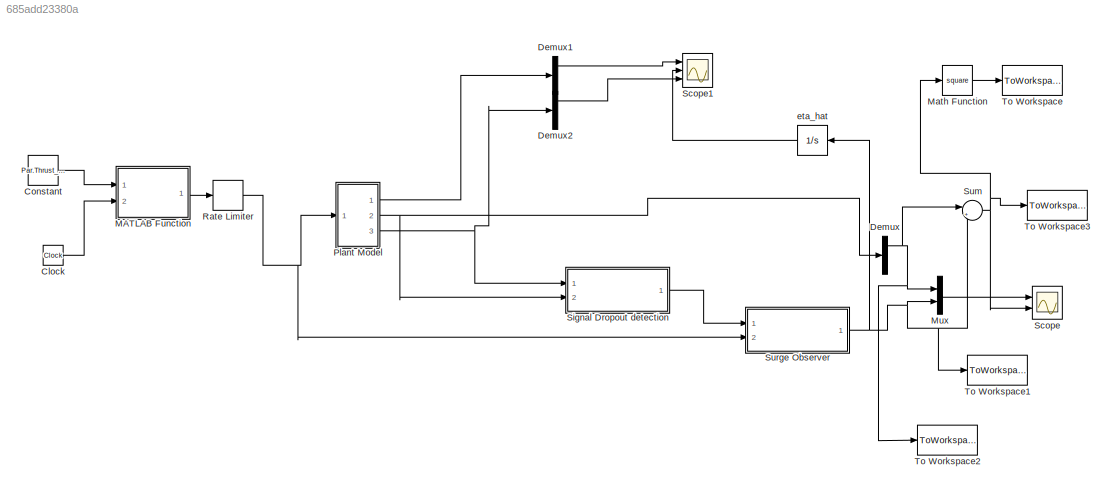
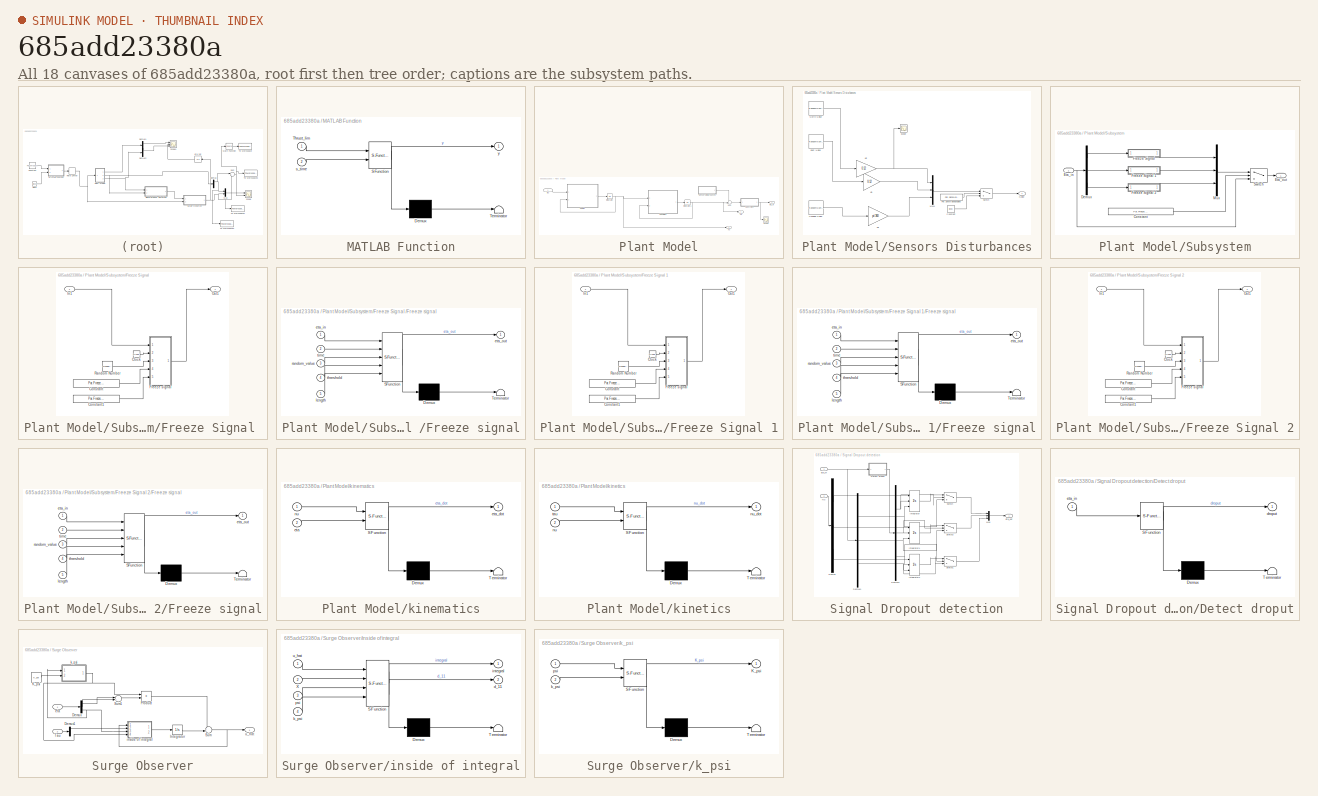
[diagram: thumbnail index - all 18 canvases of the model, root first then tree order]
MODEL slx_685add23380a
KIND model
CONFIG AbsTol = auto
CONFIG FixedStep = Par.Step_size
CONFIG MaxStep = auto
CONFIG MinStep = auto
CONFIG RelTol = 1e-3
CONFIG SampleTimeConstraint = Unconstrained
CONFIG Solver = ode45
CONFIG SolverMode = SingleTasking
CONFIG SolverName = ode45
CONFIG StartTime = 0.0
CONFIG StopTime = 30
BLOCK [Clock] Clock
BLOCK [Constant] Constant
  Value = Par.Thrust_lim
BLOCK [Demux] Demux
  DisplayOption = bar
  Outputs = 3
  Ports = [1, 3]
BLOCK [Demux] Demux1
  DisplayOption = bar
  Outputs = 3
  Ports = [1, 3]
BLOCK [Demux] Demux2
  DisplayOption = bar
  Outputs = 3
  Ports = [1, 3]
BLOCK [SubSystem] MATLAB Function
  ErrorFcn = Stateflow.Translate.translate
  PermitHierarchicalResolution = ParametersOnly
  Ports = [2, 1]
  RequestExecContextInheritance = off
  SFBlockType = MATLAB Function
  TreatAsAtomicUnit = on
  Variant = off
BLOCK [Demux] MATLAB Function/ Demux 
  Outputs = 1
  Ports = [1, 1]
BLOCK [S-Function] MATLAB Function/ SFunction 
  EnableBusSupport = on
  FunctionName = sf_sfun
  PortCounts = [2 2]
  Ports = [2, 2]
  SFunctionDeploymentMode = off
  Tag = Stateflow S-Function main_2015a 5
BLOCK [Terminator] MATLAB Function/ Terminator 
BLOCK [Inport] MATLAB Function/Thrust_lim
  IconDisplay = Port number
BLOCK [Inport] MATLAB Function/s_time
  IconDisplay = Port number
  Port = 2
BLOCK [Outport] MATLAB Function/y
  IconDisplay = Port number
BLOCK [Math] Math Function
  Operator = square
  Ports = [1, 1]
BLOCK [Mux] Mux
  DisplayOption = bar
  Inputs = 2
  Ports = [2, 1]
BLOCK [SubSystem] Plant Model
  Ports = [1, 3]
  RequestExecContextInheritance = off
  Variant = off
BLOCK [Integrator] Plant Model/Integrator
  InitialCondition = nu_0
  Ports = [1, 1]
BLOCK [Integrator] Plant Model/Integrator1
  InitialCondition = eta_0
  Ports = [1, 1]
BLOCK [Scope] Plant Model/Scope
  DataFormat = StructureWithTime
  Decimation = 1
  Grid = on
  LimitDataPoints = off
  MaxDataPoints = 5000
  NumInputPorts = 1
  Ports = [1]
  SampleInput = off
  SampleTime = -1
  SaveName = ScopeData1
  SaveToWorkspace = off
  ShowLegends = off
  TickLabels = OneTimeTick
  TimeRange = auto
  YMax = 2.49044
  YMin = -0.68357
  ZoomMode = on
BLOCK [SubSystem] Plant Model/Sensors Disturbances
  Ports = [0, 1]
  RequestExecContextInheritance = off
  Variant = off
BLOCK [Constant] Plant Model/Sensors Disturbances/Constant
  Value = [0 0 0]
BLOCK [RandomNumber] Plant Model/Sensors Disturbances/East Noise
  DisableCoverage = on
  SampleTime = Par.Sample_time
  Seed = ceil(abs(5*round(abs(now*1e6 - fix(now*1e6))*1e5)))
  VectorParams1D = off
BLOCK [RandomNumber] Plant Model/Sensors Disturbances/Heading Noise
  DisableCoverage = on
  SampleTime = Par.Sample_time
  Seed = ceil(abs(11*round(abs(now*1e6 - fix(now*1e6))*1e5)))
BLOCK [Gain] Plant Model/Sensors Disturbances/Ki1
  Gain = 0.12
  OutDataTypeStr = Inherit: Inherit via internal rule
  ParamDataTypeStr = Inherit: Inherit via internal rule
  RndMeth = Nearest
  SaturateOnIntegerOverflow = off
BLOCK [Gain] Plant Model/Sensors Disturbances/Ki2
  Gain = 0.12
  OutDataTypeStr = Inherit: Inherit via internal rule
  ParamDataTypeStr = Inherit: Inherit via internal rule
  RndMeth = Nearest
  SaturateOnIntegerOverflow = off
BLOCK [Gain] Plant Model/Sensors Disturbances/Ki4
  Gain = pi/360
  OutDataTypeStr = Inherit: Inherit via internal rule
  ParamDataTypeStr = Inherit: Inherit via internal rule
  RndMeth = Nearest
  SaturateOnIntegerOverflow = off
BLOCK [Mux] Plant Model/Sensors Disturbances/Mux1
  DisplayOption = bar
  Inputs = 3
  Ports = [3, 1]
BLOCK [Outport] Plant Model/Sensors Disturbances/Noise
  IconDisplay = Port number
BLOCK [RandomNumber] Plant Model/Sensors Disturbances/North Noise
  DisableCoverage = on
  SampleTime = Par.Sample_time
  Seed = ceil(abs(3*round(abs(now*1e6 - fix(now*1e6))*1e5)))
BLOCK [Constant] Plant Model/Sensors Disturbances/Par.SensNoiseEnabled
  Value = Par.SensNoiseEnabled
BLOCK [Scope] Plant Model/Sensors Disturbances/Scope
  DataFormat = StructureWithTime
  Decimation = 1
  Grid = on
  LimitDataPoints = off
  MaxDataPoints = 5000
  NumInputPorts = 1
  Ports = [1]
  SampleInput = off
  SampleTime = -1
  SaveName = ScopeData2
  SaveToWorkspace = off
  ShowLegends = off
  TickLabels = OneTimeTick
  TimeRange = auto
  YMax = 0.47143
  YMin = -0.51365
  ZoomMode = on
BLOCK [Switch] Plant Model/Sensors Disturbances/Switch
  Criteria = u2 > Threshold
  InputSameDT = off
  SaturateOnIntegerOverflow = off
BLOCK [SubSystem] Plant Model/Subsystem
  Ports = [1, 1]
  RequestExecContextInheritance = off
  Variant = off
BLOCK [Constant] Plant Model/Subsystem/Constant
  Value = Par.Freeze.Enable
BLOCK [Demux] Plant Model/Subsystem/Demux
  DisplayOption = bar
  Outputs = 3
  Ports = [1, 3]
BLOCK [Inport] Plant Model/Subsystem/Eta_in
  IconDisplay = Port number
BLOCK [Outport] Plant Model/Subsystem/Eta_out
  IconDisplay = Port number
BLOCK [SubSystem] Plant Model/Subsystem/Freeze Signal 
  Ports = [1, 1]
  RequestExecContextInheritance = off
  Variant = off
BLOCK [Clock] Plant Model/Subsystem/Freeze Signal /Clock
BLOCK [Constant] Plant Model/Subsystem/Freeze Signal /Constant
  Value = Par.Freeze.threshold
BLOCK [Constant] Plant Model/Subsystem/Freeze Signal /Constant1
  Value = Par.Freeze.length
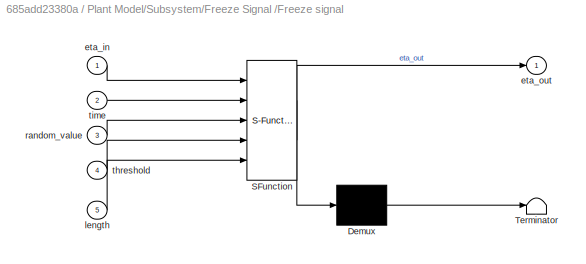
BLOCK [SubSystem] Plant Model/Subsystem/Freeze Signal /Freeze signal
  ErrorFcn = Stateflow.Translate.translate
  PermitHierarchicalResolution = ParametersOnly
  Ports = [5, 1]
  RequestExecContextInheritance = off
  SFBlockType = MATLAB Function
  TreatAsAtomicUnit = on
  Variant = off
BLOCK [Demux] Plant Model/Subsystem/Freeze Signal /Freeze signal/ Demux 
  Outputs = 1
  Ports = [1, 1]
BLOCK [S-Function] Plant Model/Subsystem/Freeze Signal /Freeze signal/ SFunction 
  EnableBusSupport = on
  FunctionName = sf_sfun
  PortCounts = [5 2]
  Ports = [5, 2]
  SFunctionDeploymentMode = off
  Tag = Stateflow S-Function main_2015a 11
BLOCK [Terminator] Plant Model/Subsystem/Freeze Signal /Freeze signal/ Terminator 
BLOCK [Inport] Plant Model/Subsystem/Freeze Signal /Freeze signal/eta_in
  IconDisplay = Port number
BLOCK [Outport] Plant Model/Subsystem/Freeze Signal /Freeze signal/eta_out
  IconDisplay = Port number
BLOCK [Inport] Plant Model/Subsystem/Freeze Signal /Freeze signal/length
  IconDisplay = Port number
  Port = 5
BLOCK [Inport] Plant Model/Subsystem/Freeze Signal /Freeze signal/random_value
  IconDisplay = Port number
  Port = 3
BLOCK [Inport] Plant Model/Subsystem/Freeze Signal /Freeze signal/threshold
  IconDisplay = Port number
  Port = 4
BLOCK [Inport] Plant Model/Subsystem/Freeze Signal /Freeze signal/time
  IconDisplay = Port number
  Port = 2
BLOCK [Inport] Plant Model/Subsystem/Freeze Signal /In1
  IconDisplay = Port number
BLOCK [Outport] Plant Model/Subsystem/Freeze Signal /Out1
  IconDisplay = Port number
BLOCK [RandomNumber] Plant Model/Subsystem/Freeze Signal /Random Number
  SampleTime = 0.1
  Seed = ceil(abs(5*round(abs(now*1e6 - fix(now*1e6))*1e5)))
BLOCK [SubSystem] Plant Model/Subsystem/Freeze Signal 1
  Ports = [1, 1]
  RequestExecContextInheritance = off
  Variant = off
BLOCK [Clock] Plant Model/Subsystem/Freeze Signal 1/Clock
BLOCK [Constant] Plant Model/Subsystem/Freeze Signal 1/Constant
  Value = Par.Freeze.threshold
BLOCK [Constant] Plant Model/Subsystem/Freeze Signal 1/Constant1
  Value = Par.Freeze.length
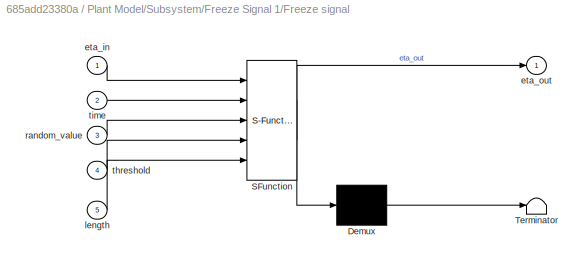
BLOCK [SubSystem] Plant Model/Subsystem/Freeze Signal 1/Freeze signal
  ErrorFcn = Stateflow.Translate.translate
  PermitHierarchicalResolution = ParametersOnly
  Ports = [5, 1]
  RequestExecContextInheritance = off
  SFBlockType = MATLAB Function
  TreatAsAtomicUnit = on
  Variant = off
BLOCK [Demux] Plant Model/Subsystem/Freeze Signal 1/Freeze signal/ Demux 
  Outputs = 1
  Ports = [1, 1]
BLOCK [S-Function] Plant Model/Subsystem/Freeze Signal 1/Freeze signal/ SFunction 
  EnableBusSupport = on
  FunctionName = sf_sfun
  PortCounts = [5 2]
  Ports = [5, 2]
  SFunctionDeploymentMode = off
  Tag = Stateflow S-Function main_2015a 12
BLOCK [Terminator] Plant Model/Subsystem/Freeze Signal 1/Freeze signal/ Terminator 
BLOCK [Inport] Plant Model/Subsystem/Freeze Signal 1/Freeze signal/eta_in
  IconDisplay = Port number
BLOCK [Outport] Plant Model/Subsystem/Freeze Signal 1/Freeze signal/eta_out
  IconDisplay = Port number
BLOCK [Inport] Plant Model/Subsystem/Freeze Signal 1/Freeze signal/length
  IconDisplay = Port number
  Port = 5
BLOCK [Inport] Plant Model/Subsystem/Freeze Signal 1/Freeze signal/random_value
  IconDisplay = Port number
  Port = 3
BLOCK [Inport] Plant Model/Subsystem/Freeze Signal 1/Freeze signal/threshold
  IconDisplay = Port number
  Port = 4
BLOCK [Inport] Plant Model/Subsystem/Freeze Signal 1/Freeze signal/time
  IconDisplay = Port number
  Port = 2
BLOCK [Inport] Plant Model/Subsystem/Freeze Signal 1/In1
  IconDisplay = Port number
BLOCK [Outport] Plant Model/Subsystem/Freeze Signal 1/Out1
  IconDisplay = Port number
BLOCK [RandomNumber] Plant Model/Subsystem/Freeze Signal 1/Random Number
  SampleTime = 0.1
  Seed = ceil(abs(5*round(abs(now*1e6 - fix(now*1e6))*1e5)))
BLOCK [SubSystem] Plant Model/Subsystem/Freeze Signal 2
  Ports = [1, 1]
  RequestExecContextInheritance = off
  Variant = off
BLOCK [Clock] Plant Model/Subsystem/Freeze Signal 2/Clock
BLOCK [Constant] Plant Model/Subsystem/Freeze Signal 2/Constant
  Value = Par.Freeze.threshold
BLOCK [Constant] Plant Model/Subsystem/Freeze Signal 2/Constant1
  Value = Par.Freeze.length
BLOCK [SubSystem] Plant Model/Subsystem/Freeze Signal 2/Freeze signal
  ErrorFcn = Stateflow.Translate.translate
  PermitHierarchicalResolution = ParametersOnly
  Ports = [5, 1]
  RequestExecContextInheritance = off
  SFBlockType = MATLAB Function
  TreatAsAtomicUnit = on
  Variant = off
BLOCK [Demux] Plant Model/Subsystem/Freeze Signal 2/Freeze signal/ Demux 
  Outputs = 1
  Ports = [1, 1]
BLOCK [S-Function] Plant Model/Subsystem/Freeze Signal 2/Freeze signal/ SFunction 
  EnableBusSupport = on
  FunctionName = sf_sfun
  PortCounts = [5 2]
  Ports = [5, 2]
  SFunctionDeploymentMode = off
  Tag = Stateflow S-Function main_2015a 13
BLOCK [Terminator] Plant Model/Subsystem/Freeze Signal 2/Freeze signal/ Terminator 
BLOCK [Inport] Plant Model/Subsystem/Freeze Signal 2/Freeze signal/eta_in
  IconDisplay = Port number
BLOCK [Outport] Plant Model/Subsystem/Freeze Signal 2/Freeze signal/eta_out
  IconDisplay = Port number
BLOCK [Inport] Plant Model/Subsystem/Freeze Signal 2/Freeze signal/length
  IconDisplay = Port number
  Port = 5
BLOCK [Inport] Plant Model/Subsystem/Freeze Signal 2/Freeze signal/random_value
  IconDisplay = Port number
  Port = 3
BLOCK [Inport] Plant Model/Subsystem/Freeze Signal 2/Freeze signal/threshold
  IconDisplay = Port number
  Port = 4
BLOCK [Inport] Plant Model/Subsystem/Freeze Signal 2/Freeze signal/time
  IconDisplay = Port number
  Port = 2
BLOCK [Inport] Plant Model/Subsystem/Freeze Signal 2/In1
  IconDisplay = Port number
BLOCK [Outport] Plant Model/Subsystem/Freeze Signal 2/Out1
  IconDisplay = Port number
BLOCK [RandomNumber] Plant Model/Subsystem/Freeze Signal 2/Random Number
  SampleTime = 0.1
  Seed = ceil(abs(5*round(abs(now*1e6 - fix(now*1e6))*1e5)))
BLOCK [Mux] Plant Model/Subsystem/Mux
  DisplayOption = bar
  Inputs = 3
  Ports = [3, 1]
BLOCK [Switch] Plant Model/Subsystem/Switch
  Criteria = u2 > Threshold
  InputSameDT = off
  SaturateOnIntegerOverflow = off
BLOCK [Sum] Plant Model/Sum
  IconShape = round
  InputSameDT = off
  Inputs = ++|
  OutDataTypeStr = Inherit: Inherit via internal rule
  Ports = [2, 1]
  SaturateOnIntegerOverflow = off
BLOCK [Outport] Plant Model/eta
  IconDisplay = Port number
BLOCK [Outport] Plant Model/eta_m
  IconDisplay = Port number
  Port = 3
BLOCK [SubSystem] Plant Model/kinematics
  ErrorFcn = Stateflow.Translate.translate
  PermitHierarchicalResolution = ParametersOnly
  Ports = [2, 1]
  RequestExecContextInheritance = off
  SFBlockType = MATLAB Function
  TreatAsAtomicUnit = on
  Variant = off
BLOCK [Demux] Plant Model/kinematics/ Demux 
  Outputs = 1
  Ports = [1, 1]
BLOCK [S-Function] Plant Model/kinematics/ SFunction 
  EnableBusSupport = on
  FunctionName = sf_sfun
  PortCounts = [2 2]
  Ports = [2, 2]
  SFunctionDeploymentMode = off
  Tag = Stateflow S-Function main_2015a 1
BLOCK [Terminator] Plant Model/kinematics/ Terminator 
BLOCK [Inport] Plant Model/kinematics/eta
  IconDisplay = Port number
  Port = 2
BLOCK [Outport] Plant Model/kinematics/eta_dot
  IconDisplay = Port number
BLOCK [Inport] Plant Model/kinematics/nu
  IconDisplay = Port number
BLOCK [SubSystem] Plant Model/kinetics
  ErrorFcn = Stateflow.Translate.translate
  PermitHierarchicalResolution = ParametersOnly
  Ports = [2, 1]
  RequestExecContextInheritance = off
  SFBlockType = MATLAB Function
  TreatAsAtomicUnit = on
  Variant = off
BLOCK [Demux] Plant Model/kinetics/ Demux 
  Outputs = 1
  Ports = [1, 1]
BLOCK [S-Function] Plant Model/kinetics/ SFunction 
  EnableBusSupport = on
  FunctionName = sf_sfun
  PortCounts = [2 2]
  Ports = [2, 2]
  SFunctionDeploymentMode = off
  Tag = Stateflow S-Function main_2015a 2
BLOCK [Terminator] Plant Model/kinetics/ Terminator 
BLOCK [Inport] Plant Model/kinetics/nu
  IconDisplay = Port number
  Port = 2
BLOCK [Outport] Plant Model/kinetics/nu_dot
  IconDisplay = Port number
BLOCK [Inport] Plant Model/kinetics/tau
  IconDisplay = Port number
BLOCK [Outport] Plant Model/nu
  IconDisplay = Port number
  Port = 2
BLOCK [Inport] Plant Model/tau
  IconDisplay = Port number
BLOCK [RateLimiter] Rate Limiter
  FallingSlewLimit = -5
  RisingSlewLimit = 5
  SampleTimeMode = inherited
BLOCK [Scope] Scope
  DataFormat = StructureWithTime
  Decimation = 1
  Grid = on
  LimitDataPoints = off
  MaxDataPoints = 5000
  NumInputPorts = 2
  Ports = [2]
  SampleInput = off
  SampleTime = -1
  SaveName = ScopeData
  SaveToWorkspace = off
  ShowLegends = on
  TickLabels = OneTimeTick
  TimeRange = auto
  YMax = 1.13216~0.79171
  YMin = -1.1002~-1.35009
  ZoomMode = on
BLOCK [Scope] Scope1
  DataFormat = StructureWithTime
  Decimation = 1
  Grid = on
  LimitDataPoints = off
  MaxDataPoints = 5000
  NumInputPorts = 3
  Ports = [3]
  SampleInput = off
  SampleTime = -1
  SaveName = ScopeData1
  SaveToWorkspace = off
  ShowLegends = on
  TickLabels = OneTimeTick
  TimeRange = auto
  YMax = 5.84652~5~5
  YMin = -0.94998~-5~-5
  ZoomMode = on
BLOCK [SubSystem] Signal Dropout detection
  Ports = [2, 1]
  RequestExecContextInheritance = off
  Variant = off
BLOCK [Demux] Signal Dropout detection/Demux
  DisplayOption = bar
  Outputs = 3
  Ports = [1, 3]
BLOCK [Demux] Signal Dropout detection/Demux1
  DisplayOption = bar
  Outputs = 3
  Ports = [1, 3]
BLOCK [Demux] Signal Dropout detection/Demux2
  DisplayOption = bar
  Outputs = 3
  Ports = [1, 3]
BLOCK [SubSystem] Signal Dropout detection/Detect droput
  ErrorFcn = Stateflow.Translate.translate
  PermitHierarchicalResolution = ParametersOnly
  Ports = [1, 1]
  RequestExecContextInheritance = off
  SFBlockType = MATLAB Function
  TreatAsAtomicUnit = on
  Variant = off
BLOCK [Demux] Signal Dropout detection/Detect droput/ Demux 
  Outputs = 1
  Ports = [1, 1]
BLOCK [S-Function] Signal Dropout detection/Detect droput/ SFunction 
  EnableBusSupport = on
  FunctionName = sf_sfun
  PortCounts = [1 2]
  Ports = [1, 2]
  SFunctionDeploymentMode = off
  Tag = Stateflow S-Function main_2015a 10
BLOCK [Terminator] Signal Dropout detection/Detect droput/ Terminator 
BLOCK [Outport] Signal Dropout detection/Detect droput/droput
  IconDisplay = Port number
BLOCK [Inport] Signal Dropout detection/Detect droput/eta_in
  IconDisplay = Port number
BLOCK [Inport] Signal Dropout detection/Eta_m
  IconDisplay = Port number
BLOCK [Outport] Signal Dropout detection/Eta_out
  IconDisplay = Port number
BLOCK [Integrator] Signal Dropout detection/Integrator
  ExternalReset = rising
  InitialConditionSource = external
  Ports = [3, 1]
BLOCK [Integrator] Signal Dropout detection/Integrator1
  ExternalReset = rising
  InitialConditionSource = external
  Ports = [3, 1]
BLOCK [Integrator] Signal Dropout detection/Integrator2
  ExternalReset = rising
  InitialConditionSource = external
  Ports = [3, 1]
BLOCK [Mux] Signal Dropout detection/Mux
  DisplayOption = bar
  Inputs = 3
  Ports = [3, 1]
BLOCK [Inport] Signal Dropout detection/Nu
  IconDisplay = Port number
  Port = 2
BLOCK [Switch] Signal Dropout detection/Switch
  Criteria = u2 > Threshold
  InputSameDT = off
  SaturateOnIntegerOverflow = off
BLOCK [Switch] Signal Dropout detection/Switch1
  Criteria = u2 > Threshold
  InputSameDT = off
  SaturateOnIntegerOverflow = off
BLOCK [Switch] Signal Dropout detection/Switch2
  Criteria = u2 > Threshold
  InputSameDT = off
  SaturateOnIntegerOverflow = off
BLOCK [Sum] Sum
  IconShape = round
  InputSameDT = off
  Inputs = |+-
  OutDataTypeStr = Inherit: Inherit via internal rule
  Ports = [2, 1]
  SaturateOnIntegerOverflow = off
BLOCK [SubSystem] Surge Observer
  Ports = [2, 1]
  RequestExecContextInheritance = off
  Variant = off
BLOCK [Demux] Surge Observer/Demux
  DisplayOption = bar
  Outputs = 3
  Ports = [1, 3]
BLOCK [Demux] Surge Observer/Demux1
  DisplayOption = bar
  Outputs = 3
  Ports = [1, 3]
BLOCK [Integrator] Surge Observer/Integrator
  Ports = [1, 1]
BLOCK [Constant] Surge Observer/K_psi
  Value = K_psi
BLOCK [Product] Surge Observer/Product
  InputSameDT = off
  OutDataTypeStr = Inherit: Inherit via internal rule
  Ports = [2, 1]
  RndMeth = Floor
  SaturateOnIntegerOverflow = off
BLOCK [Sum] Surge Observer/Sum
  IconShape = round
  InputSameDT = off
  Inputs = ++|
  OutDataTypeStr = Inherit: Inherit via internal rule
  Ports = [2, 1]
  SaturateOnIntegerOverflow = off
BLOCK [Sum] Surge Observer/Sum1
  IconShape = round
  InputSameDT = off
  Inputs = |++
  OutDataTypeStr = Inherit: Inherit via internal rule
  Ports = [2, 1]
  SaturateOnIntegerOverflow = off
BLOCK [Inport] Surge Observer/Tau
  IconDisplay = Port number
  Port = 2
BLOCK [Inport] Surge Observer/eta
  IconDisplay = Port number
BLOCK [SubSystem] Surge Observer/inside of integral
  ErrorFcn = Stateflow.Translate.translate
  PermitHierarchicalResolution = ParametersOnly
  Ports = [4, 2]
  RequestExecContextInheritance = off
  SFBlockType = MATLAB Function
  TreatAsAtomicUnit = on
  Variant = off
BLOCK [Demux] Surge Observer/inside of integral/ Demux 
  Outputs = 1
  Ports = [1, 1]
BLOCK [S-Function] Surge Observer/inside of integral/ SFunction 
  EnableBusSupport = on
  FunctionName = sf_sfun
  PortCounts = [4 3]
  Ports = [4, 3]
  SFunctionDeploymentMode = off
  Tag = Stateflow S-Function main_2015a 4
BLOCK [Terminator] Surge Observer/inside of integral/ Terminator 
BLOCK [Inport] Surge Observer/inside of integral/X
  IconDisplay = Port number
  Port = 2
BLOCK [Outport] Surge Observer/inside of integral/d_11
  IconDisplay = Port number
  Port = 2
BLOCK [Outport] Surge Observer/inside of integral/integral
  IconDisplay = Port number
BLOCK [Inport] Surge Observer/inside of integral/k_psi
  IconDisplay = Port number
  Port = 4
BLOCK [Inport] Surge Observer/inside of integral/psi
  IconDisplay = Port number
  Port = 3
BLOCK [Inport] Surge Observer/inside of integral/u_hat
  IconDisplay = Port number
BLOCK [SubSystem] Surge Observer/k_psi
  ErrorFcn = Stateflow.Translate.translate
  PermitHierarchicalResolution = ParametersOnly
  Ports = [2, 1]
  RequestExecContextInheritance = off
  SFBlockType = MATLAB Function
  TreatAsAtomicUnit = on
  Variant = off
BLOCK [Demux] Surge Observer/k_psi/ Demux 
  Outputs = 1
  Ports = [1, 1]
BLOCK [S-Function] Surge Observer/k_psi/ SFunction 
  EnableBusSupport = on
  FunctionName = sf_sfun
  PortCounts = [2 2]
  Ports = [2, 2]
  SFunctionDeploymentMode = off
  Tag = Stateflow S-Function main_2015a 6
BLOCK [Terminator] Surge Observer/k_psi/ Terminator 
BLOCK [Outport] Surge Observer/k_psi/K_psi
  IconDisplay = Port number
BLOCK [Inport] Surge Observer/k_psi/k_psi
  IconDisplay = Port number
  Port = 2
BLOCK [Inport] Surge Observer/k_psi/psi
  IconDisplay = Port number
BLOCK [Outport] Surge Observer/u_hat
  IconDisplay = Port number
BLOCK [ToWorkspace] To Workspace
  FixptAsFi = on
  MaxDataPoints = inf
  Ports = [1]
  SampleTime = -1
  Save2DSignal = 3-D array (concatenate along third dimension)
  SaveFormat = Timeseries
  VariableName = simout
BLOCK [ToWorkspace] To Workspace1
  FixptAsFi = on
  MaxDataPoints = inf
  Ports = [1]
  SampleTime = -1
  Save2DSignal = 3-D array (concatenate along third dimension)
  SaveFormat = Timeseries
  VariableName = u_hat
BLOCK [ToWorkspace] To Workspace2
  FixptAsFi = on
  MaxDataPoints = inf
  Ports = [1]
  SampleTime = -1
  Save2DSignal = 3-D array (concatenate along third dimension)
  SaveFormat = Timeseries
  VariableName = nu
BLOCK [ToWorkspace] To Workspace3
  FixptAsFi = on
  MaxDataPoints = inf
  Ports = [1]
  SampleTime = -1
  Save2DSignal = 3-D array (concatenate along third dimension)
  SaveFormat = Timeseries
  VariableName = u_tilde
BLOCK [Integrator] eta_hat
  Ports = [1, 1]
LINE Clock:1 -> MATLAB Function:2
LINE Constant:1 -> MATLAB Function:1
LINE Demux1:1 -> Scope1:1
LINE Demux2:1 -> Scope1:3
NET Demux:1 -> Mux:1, Sum:1, To Workspace2:1
LINE MATLAB Function:1 -> Rate Limiter:1
LINE Math Function:1 -> To Workspace:1
LINE Mux:1 -> Scope:1
NET Plant Model/Integrator1:1 -> Plant Model/Sum:2, Plant Model/eta:1, Plant Model/kinematics:2
NET Plant Model/Integrator:1 -> Plant Model/kinematics:1, Plant Model/kinetics:2, Plant Model/nu:1
LINE Plant Model/Sensors Disturbances/Constant:1 -> Plant Model/Sensors Disturbances/Switch:3
LINE Plant Model/Sensors Disturbances/East Noise:1 -> Plant Model/Sensors Disturbances/Ki1:1
LINE Plant Model/Sensors Disturbances/Heading Noise:1 -> Plant Model/Sensors Disturbances/Ki4:1
LINE Plant Model/Sensors Disturbances/Ki1:1 -> Plant Model/Sensors Disturbances/Mux1:2
NET Plant Model/Sensors Disturbances/Ki2:1 -> Plant Model/Sensors Disturbances/Mux1:1, Plant Model/Sensors Disturbances/Scope:1
LINE Plant Model/Sensors Disturbances/Ki4:1 -> Plant Model/Sensors Disturbances/Mux1:3
LINE Plant Model/Sensors Disturbances/Mux1:1 -> Plant Model/Sensors Disturbances/Switch:1
LINE Plant Model/Sensors Disturbances/North Noise:1 -> Plant Model/Sensors Disturbances/Ki2:1
LINE Plant Model/Sensors Disturbances/Par.SensNoiseEnabled:1 -> Plant Model/Sensors Disturbances/Switch:2
LINE Plant Model/Sensors Disturbances/Switch:1 -> Plant Model/Sensors Disturbances/Noise:1
LINE Plant Model/Sensors Disturbances:1 -> Plant Model/Sum:1
LINE Plant Model/Subsystem/Constant:1 -> Plant Model/Subsystem/Switch:2
LINE Plant Model/Subsystem/Demux:1 -> Plant Model/Subsystem/Freeze Signal :1
LINE Plant Model/Subsystem/Demux:2 -> Plant Model/Subsystem/Freeze Signal 1:1
LINE Plant Model/Subsystem/Demux:3 -> Plant Model/Subsystem/Freeze Signal 2:1
NET Plant Model/Subsystem/Eta_in:1 -> Plant Model/Subsystem/Demux:1, Plant Model/Subsystem/Switch:3
LINE Plant Model/Subsystem/Freeze Signal /Clock:1 -> Plant Model/Subsystem/Freeze Signal /Freeze signal:2
LINE Plant Model/Subsystem/Freeze Signal /Constant1:1 -> Plant Model/Subsystem/Freeze Signal /Freeze signal:5
LINE Plant Model/Subsystem/Freeze Signal /Constant:1 -> Plant Model/Subsystem/Freeze Signal /Freeze signal:4
LINE Plant Model/Subsystem/Freeze Signal /Freeze signal:1 -> Plant Model/Subsystem/Freeze Signal /Out1:1
LINE Plant Model/Subsystem/Freeze Signal /In1:1 -> Plant Model/Subsystem/Freeze Signal /Freeze signal:1
LINE Plant Model/Subsystem/Freeze Signal /Random Number:1 -> Plant Model/Subsystem/Freeze Signal /Freeze signal:3
LINE Plant Model/Subsystem/Freeze Signal 1/Clock:1 -> Plant Model/Subsystem/Freeze Signal 1/Freeze signal:2
LINE Plant Model/Subsystem/Freeze Signal 1/Constant1:1 -> Plant Model/Subsystem/Freeze Signal 1/Freeze signal:5
LINE Plant Model/Subsystem/Freeze Signal 1/Constant:1 -> Plant Model/Subsystem/Freeze Signal 1/Freeze signal:4
LINE Plant Model/Subsystem/Freeze Signal 1/Freeze signal:1 -> Plant Model/Subsystem/Freeze Signal 1/Out1:1
LINE Plant Model/Subsystem/Freeze Signal 1/In1:1 -> Plant Model/Subsystem/Freeze Signal 1/Freeze signal:1
LINE Plant Model/Subsystem/Freeze Signal 1/Random Number:1 -> Plant Model/Subsystem/Freeze Signal 1/Freeze signal:3
LINE Plant Model/Subsystem/Freeze Signal 1:1 -> Plant Model/Subsystem/Mux:2
LINE Plant Model/Subsystem/Freeze Signal 2/Clock:1 -> Plant Model/Subsystem/Freeze Signal 2/Freeze signal:2
LINE Plant Model/Subsystem/Freeze Signal 2/Constant1:1 -> Plant Model/Subsystem/Freeze Signal 2/Freeze signal:5
LINE Plant Model/Subsystem/Freeze Signal 2/Constant:1 -> Plant Model/Subsystem/Freeze Signal 2/Freeze signal:4
LINE Plant Model/Subsystem/Freeze Signal 2/Freeze signal:1 -> Plant Model/Subsystem/Freeze Signal 2/Out1:1
LINE Plant Model/Subsystem/Freeze Signal 2/In1:1 -> Plant Model/Subsystem/Freeze Signal 2/Freeze signal:1
LINE Plant Model/Subsystem/Freeze Signal 2/Random Number:1 -> Plant Model/Subsystem/Freeze Signal 2/Freeze signal:3
LINE Plant Model/Subsystem/Freeze Signal 2:1 -> Plant Model/Subsystem/Mux:3
LINE Plant Model/Subsystem/Freeze Signal :1 -> Plant Model/Subsystem/Mux:1
LINE Plant Model/Subsystem/Mux:1 -> Plant Model/Subsystem/Switch:1
LINE Plant Model/Subsystem/Switch:1 -> Plant Model/Subsystem/Eta_out:1
NET Plant Model/Subsystem:1 -> Plant Model/Scope:1, Plant Model/eta_m:1
LINE Plant Model/Sum:1 -> Plant Model/Subsystem:1
LINE Plant Model/kinematics:1 -> Plant Model/Integrator1:1
LINE Plant Model/kinetics:1 -> Plant Model/Integrator:1
LINE Plant Model/tau:1 -> Plant Model/kinetics:1
LINE Plant Model:1 -> Demux1:1
NET Plant Model:2 -> Demux:1, Signal Dropout detection:2
NET Plant Model:3 -> Demux2:1, Signal Dropout detection:1
NET Rate Limiter:1 -> Plant Model:1, Surge Observer:2
NET Signal Dropout detection/Demux1:1 -> Signal Dropout detection/Integrator:3, Signal Dropout detection/Switch:3
NET Signal Dropout detection/Demux1:2 -> Signal Dropout detection/Integrator1:3, Signal Dropout detection/Switch2:3
NET Signal Dropout detection/Demux1:3 -> Signal Dropout detection/Integrator2:3, Signal Dropout detection/Switch1:3
NET Signal Dropout detection/Demux2:1 -> Signal Dropout detection/Integrator:2, Signal Dropout detection/Switch:2
NET Signal Dropout detection/Demux2:2 -> Signal Dropout detection/Integrator1:2, Signal Dropout detection/Switch2:2
NET Signal Dropout detection/Demux2:3 -> Signal Dropout detection/Integrator2:2, Signal Dropout detection/Switch1:2
LINE Signal Dropout detection/Demux:1 -> Signal Dropout detection/Integrator:1
LINE Signal Dropout detection/Demux:2 -> Signal Dropout detection/Integrator1:1
LINE Signal Dropout detection/Demux:3 -> Signal Dropout detection/Integrator2:1
LINE Signal Dropout detection/Detect droput:1 -> Signal Dropout detection/Demux2:1
NET Signal Dropout detection/Eta_m:1 -> Signal Dropout detection/Demux1:1, Signal Dropout detection/Detect droput:1
LINE Signal Dropout detection/Integrator1:1 -> Signal Dropout detection/Switch2:1
LINE Signal Dropout detection/Integrator2:1 -> Signal Dropout detection/Switch1:1
LINE Signal Dropout detection/Integrator:1 -> Signal Dropout detection/Switch:1
LINE Signal Dropout detection/Mux:1 -> Signal Dropout detection/Eta_out:1
LINE Signal Dropout detection/Nu:1 -> Signal Dropout detection/Demux:1
LINE Signal Dropout detection/Switch1:1 -> Signal Dropout detection/Mux:3
LINE Signal Dropout detection/Switch2:1 -> Signal Dropout detection/Mux:2
LINE Signal Dropout detection/Switch:1 -> Signal Dropout detection/Mux:1
LINE Signal Dropout detection:1 -> Surge Observer:1
NET Sum:1 -> Math Function:1, Scope:2, To Workspace3:1
LINE Surge Observer/Demux1:1 -> Surge Observer/inside of integral:2
LINE Surge Observer/Demux:1 -> Surge Observer/Sum1:1
LINE Surge Observer/Demux:2 -> Surge Observer/Sum1:2
NET Surge Observer/Demux:3 -> Surge Observer/inside of integral:3, Surge Observer/k_psi:1
LINE Surge Observer/Integrator:1 -> Surge Observer/Sum:2
LINE Surge Observer/K_psi:1 -> Surge Observer/k_psi:2
LINE Surge Observer/Product:1 -> Surge Observer/Sum:1
LINE Surge Observer/Sum1:1 -> Surge Observer/Product:2
NET Surge Observer/Sum:1 -> Surge Observer/inside of integral:1, Surge Observer/u_hat:1
LINE Surge Observer/Tau:1 -> Surge Observer/Demux1:1
LINE Surge Observer/eta:1 -> Surge Observer/Demux:1
LINE Surge Observer/inside of integral:1 -> Surge Observer/Integrator:1
NET Surge Observer/k_psi:1 -> Surge Observer/Product:1, Surge Observer/inside of integral:4
NET Surge Observer:1 -> Mux:2, Sum:2, To Workspace1:1, eta_hat:1
LINE eta_hat:1 -> Scope1:2
note: NET lines group one-source signal fan-out (src -> all destinations, sorted); 1:1 wires keep LINE
CHART Plant Model/kinematics states=1 transitions=1
  STATE_LABEL 'eML_blk_kernel()'
  STATE_LABEL 'SCRIPT:\nfunction eta_dot = CSE1_eta_dot(nu,eta)\n\npsi = eta(3);\n\nJ = [cos(psi) -sin(psi) 0\n     sin(psi) cos(psi)  0\n     0        0         1];\n\neta_dot = J*nu;'
CHART Plant Model/kinetics states=1 transitions=1
  STATE_LABEL 'eML_blk_kernel()'
  STATE_LABEL 'SCRIPT:\nfunction nu_dot = CSE1_nu_dot(tau,nu)\n\nu   = nu(1);\nv   = nu(2);\nr   = nu(3);\n\ntau = [tau(1);tau(2);tau(3)];\n%% MATRICES\n\nm    = 14.79;   I_z  =  1.7600;   x_g = 0.0375;       % x_g  =  0.0460; % Table B.1\n\n\n%% Added mass\nX_ud  =     -2.0;\t\t\t\t\t\t\t\t\t\t\t% Table B.1\n\t\t\t\t\tY_vd =     -1.0;\tN_vd =    -0.0;\t\t% Table B.1 guestimate\n\t\t\t\t\tY_rd =      -0.0;\tN_rd =    -1.0;\t\t% Table B.1\n\n%% Total mass m...<+1285ch>'
CHART Surge Observer/inside of integral states=1 transitions=1
  STATE_LABEL 'eML_blk_kernel()'
  STATE_LABEL 'SCRIPT:\nfunction [integral,d_11] = fcn(u_hat, X, psi, k_psi)\n%#codegen\nX_u = -.6555;\nX_uu = .3545;\nX_uuu = -3.787;\nm_11 = 16.79;\nd_11 = -X_u -X_uu*abs(u_hat) - X_uuu*u_hat^2;\nintegral = -d_11*u_hat/m_11 + X/m_11 - k_psi*(cos(psi) + sin(psi))*u_hat;\nend'
CHART MATLAB Function states=1 transitions=1
  STATE_LABEL 'eML_blk_kernel()'
  STATE_LABEL "SCRIPT:\nfunction y = fcn(Thrust_lim, s_time)\ncoder.extrinsic('get_param');\n    y = [0 0 0]';\n    if (s_time < 2)\n        y_t = [1 0 0];\n    elseif (s_time < 4)\n        y_t = [1 0 0];\n    elseif (s_time <6)\n        y_t = [0.5 0 0];\n    elseif s_time <8\n        y_t = [0 0 0];\n    else\n        y_t = [0 0 0];\n    end\n    y = y_t'.*Thrust_lim;\nend\n"
CHART Surge Observer/k_psi states=1 transitions=1
  STATE_LABEL 'eML_blk_kernel()'
  STATE_LABEL 'SCRIPT:\nfunction K_psi = fcn(psi,k_psi)\n%#codegen\nK_psi = k_psi*sign(sin(psi) + cos(psi));\n% y = u;'
CHART Signal Dropout detection/Detect droput states=1 transitions=1
  STATE_LABEL 'eML_blk_kernel()'
  STATE_LABEL 'SCRIPT:\nfunction droput = fcn(eta_in)\npersistent eta_old;\nif isempty(eta_old)\n    eta_old = eta_in;\nend\ndroput = (eta_in - eta_old) == 0;\neta_old = eta_in;\nend'
CHART Plant Model/Subsystem/Freeze Signal
/Freeze signal states=1 transitions=1
  STATE_LABEL 'eML_blk_kernel()'
  STATE_LABEL 'SCRIPT:\nfunction eta_out = fcn(eta_in, time, random_value, threshold, length)\npersistent eta t_1;\nif isempty(eta)\n    eta = eta_in;\n    t_1 = 0;\nend\n\nif random_value > threshold\n    t_1 = time + length*(0.5*rand+0.5);\nend\nif time>=t_1\n    eta = eta_in;\nend\n\neta_out = eta;\nend\n'  <repeated x3 — deduplicated; at blocks: Freeze Signal>
CHART Plant Model/Subsystem/Freeze Signal
1/Freeze signal states=1 transitions=1
  STATE_LABEL 'eML_blk_kernel()'
CHART Plant Model/Subsystem/Freeze Signal
2/Freeze signal states=1 transitions=1
  STATE_LABEL 'eML_blk_kernel()'
